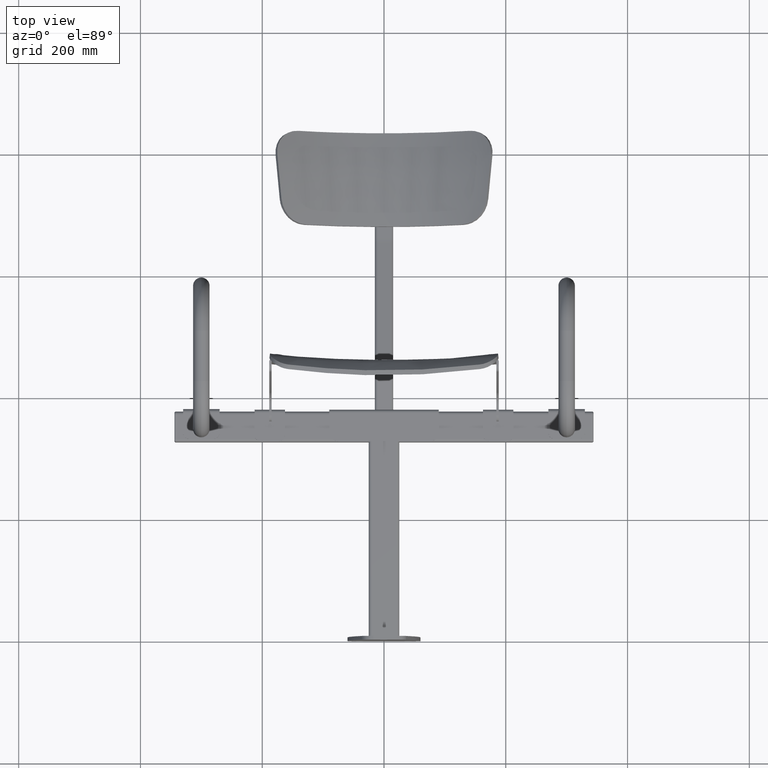
[diagram: clean part render]
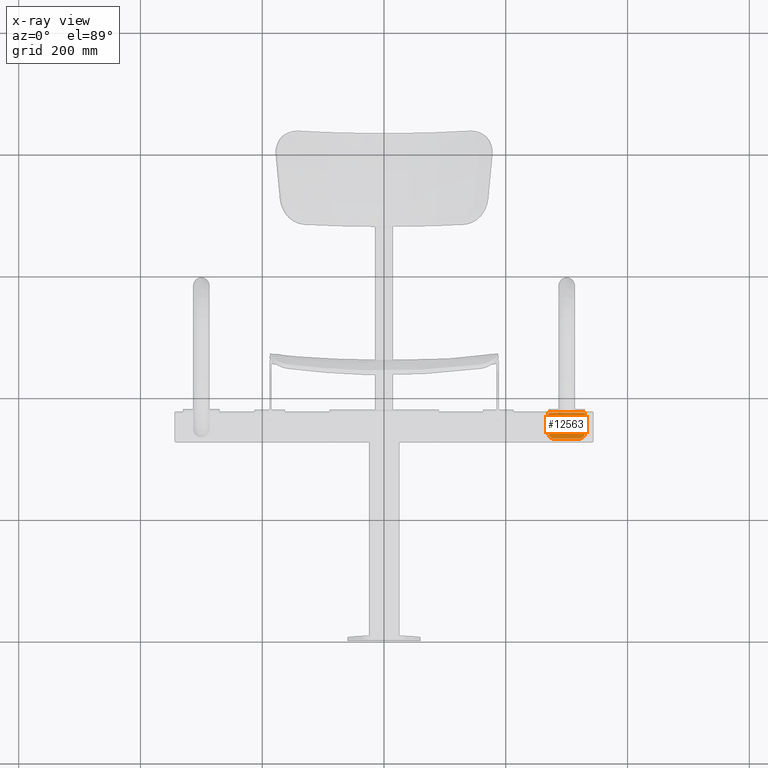
[diagram: x-ray — body ghosted, one internal face saturated and labeled with its STEP entity id]
A machine part, top view, then the same camera in x-ray: the body is ghosted and one INTERNAL B-rep face — a face not visible from any outside direction — is saturated and labeled: STEP entity #12563.
In plain terms, the highlighted planar face has unit normal (0, 0, -1).
Its self-contained STEP definition (entity closure, byte-faithful):
#451 = AXIS2_PLACEMENT_3D ( 'NONE', #4349, #4346, #4353 ) ;
#3743 = EDGE_CURVE ( 'NONE', #5325, #5346, #6522, .T. ) ;
#4122 = LINE ( 'NONE', #5833, #4125 ) ;
#4124 = LINE ( 'NONE', #5837, #4132 ) ;
#4125 = VECTOR ( 'NONE', #5835, 1000.000000000000000 ) ;
#4126 = CIRCLE ( 'NONE', #6946, 5.000000000000000900 ) ;
#4128 = LINE ( 'NONE', #5834, #4130 ) ;
#4130 = VECTOR ( 'NONE', #5828, 1000.000000000000000 ) ;
#4131 = LINE ( 'NONE', #7246, #4134 ) ;
#4132 = VECTOR ( 'NONE', #5842, 1000.000000000000000 ) ;
#4133 = CIRCLE ( 'NONE', #6947, 10.00000000000000200 ) ;
#4134 = VECTOR ( 'NONE', #7247, 1000.000000000000000 ) ;
#4135 = CIRCLE ( 'NONE', #6948, 10.00000000000000200 ) ;
#4346 = DIRECTION ( 'NONE',  ( 0.0000000000000000000, 1.541976423090495400E-016, -1.000000000000000000 ) ) ;
#4349 = CARTESIAN_POINT ( 'NONE',  ( 30.00000000000000000, 0.0000000000000000000, 26.00000000000000000 ) ) ;
#4351 = PLANE ( 'NONE',  #451 ) ;
#4353 = DIRECTION ( 'NONE',  ( 0.0000000000000000000, 1.000000000000000000, 1.541976423090495400E-016 ) ) ;
#4765 = CARTESIAN_POINT ( 'NONE',  ( -19.99999999999999600, -45.00000000000000000, 25.99999999999999300 ) ) ;
#4808 = CARTESIAN_POINT ( 'NONE',  ( 30.00000000000000000, -1.999999999999999100, 26.00000000000000000 ) ) ;
#5299 = VERTEX_POINT ( 'NONE', #15569 ) ;
#5301 = VERTEX_POINT ( 'NONE', #15571 ) ;
#5318 = VERTEX_POINT ( 'NONE', #15588 ) ;
#5325 = VERTEX_POINT ( 'NONE', #15595 ) ;
#5346 = VERTEX_POINT ( 'NONE', #15616 ) ;
#5347 = VERTEX_POINT ( 'NONE', #15617 ) ;
#5828 = DIRECTION ( 'NONE',  ( 0.0000000000000000000, -1.000000000000000000, -1.541976423090495400E-016 ) ) ;
#5833 = CARTESIAN_POINT ( 'NONE',  ( 30.00000000000000000, -45.00000000000000000, 25.99999999999999300 ) ) ;
#5834 = CARTESIAN_POINT ( 'NONE',  ( -30.00000000000000000, 0.0000000000000000000, 26.00000000000000000 ) ) ;
#5835 = DIRECTION ( 'NONE',  ( -1.000000000000000000, -0.0000000000000000000, -0.0000000000000000000 ) ) ;
#5837 = CARTESIAN_POINT ( 'NONE',  ( 30.00000000000000000, -2.000000000000000000, 26.00000000000000000 ) ) ;
#5838 = CARTESIAN_POINT ( 'NONE',  ( 0.0000000000000000000, -29.00000000000002500, 25.99999999999999600 ) ) ;
#5839 = DIRECTION ( 'NONE',  ( 0.0000000000000000000, 1.541976423090495400E-016, -1.000000000000000000 ) ) ;
#5840 = DIRECTION ( 'NONE',  ( 0.0000000000000000000, 1.000000000000000000, 0.0000000000000000000 ) ) ;
#5842 = DIRECTION ( 'NONE',  ( 1.000000000000000000, -0.0000000000000000000, -0.0000000000000000000 ) ) ;
#6243 = EDGE_LOOP ( 'NONE', ( #7506, #7505 ) ) ;
#6522 = CIRCLE ( 'NONE', #14114, 5.000000000000000900 ) ;
#6611 = CARTESIAN_POINT ( 'NONE',  ( 0.0000000000000000000, -29.00000000000002500, 25.99999999999999600 ) ) ;
#6612 = DIRECTION ( 'NONE',  ( 0.0000000000000000000, 1.541976423090495400E-016, -1.000000000000000000 ) ) ;
#6613 = DIRECTION ( 'NONE',  ( 0.0000000000000000000, 1.000000000000000000, 0.0000000000000000000 ) ) ;
#6946 = AXIS2_PLACEMENT_3D ( 'NONE', #5838, #5839, #5840 ) ;
#6947 = AXIS2_PLACEMENT_3D ( 'NONE', #7250, #7251, #7252 ) ;
#6948 = AXIS2_PLACEMENT_3D ( 'NONE', #7255, #7256, #7257 ) ;
#7231 = EDGE_LOOP ( 'NONE', ( #7504, #7503, #7502, #7501, #7500, #7499 ) ) ;
#7246 = CARTESIAN_POINT ( 'NONE',  ( 30.00000000000000000, 0.0000000000000000000, 26.00000000000000000 ) ) ;
#7247 = DIRECTION ( 'NONE',  ( 0.0000000000000000000, -1.000000000000000000, -1.541976423090495400E-016 ) ) ;
#7250 = CARTESIAN_POINT ( 'NONE',  ( 19.99999999999999600, -34.99999999999999300, 25.99999999999999300 ) ) ;
#7251 = DIRECTION ( 'NONE',  ( 0.0000000000000000000, 1.541976423090495400E-016, -1.000000000000000000 ) ) ;
#7252 = DIRECTION ( 'NONE',  ( 0.0000000000000000000, 1.000000000000000000, 0.0000000000000000000 ) ) ;
#7255 = CARTESIAN_POINT ( 'NONE',  ( -19.99999999999999600, -34.99999999999999300, 25.99999999999999300 ) ) ;
#7256 = DIRECTION ( 'NONE',  ( 0.0000000000000000000, 1.541976423090495400E-016, -1.000000000000000000 ) ) ;
#7257 = DIRECTION ( 'NONE',  ( 0.0000000000000000000, 1.000000000000000000, 0.0000000000000000000 ) ) ;
#7499 = ORIENTED_EDGE ( 'NONE', *, *, #7721, .T. ) ;
#7500 = ORIENTED_EDGE ( 'NONE', *, *, #7714, .T. ) ;
#7501 = ORIENTED_EDGE ( 'NONE', *, *, #7720, .T. ) ;
#7502 = ORIENTED_EDGE ( 'NONE', *, *, #7719, .T. ) ;
#7503 = ORIENTED_EDGE ( 'NONE', *, *, #7718, .T. ) ;
#7504 = ORIENTED_EDGE ( 'NONE', *, *, #7717, .F. ) ;
#7505 = ORIENTED_EDGE ( 'NONE', *, *, #3743, .F. ) ;
#7506 = ORIENTED_EDGE ( 'NONE', *, *, #7716, .F. ) ;
#7714 = EDGE_CURVE ( 'NONE', #5318, #13145, #4122, .T. ) ;
#7716 = EDGE_CURVE ( 'NONE', #5346, #5325, #4126, .T. ) ;
#7717 = EDGE_CURVE ( 'NONE', #5299, #5347, #4128, .T. ) ;
#7718 = EDGE_CURVE ( 'NONE', #5299, #13162, #4124, .T. ) ;
#7719 = EDGE_CURVE ( 'NONE', #13162, #5301, #4131, .T. ) ;
#7720 = EDGE_CURVE ( 'NONE', #5301, #5318, #4133, .T. ) ;
#7721 = EDGE_CURVE ( 'NONE', #13145, #5347, #4135, .T. ) ;
#12563 = ADVANCED_FACE ( 'NONE', ( #13294, #13296 ), #4351, .T. ) ;
#13145 = VERTEX_POINT ( 'NONE', #4765 ) ;
#13162 = VERTEX_POINT ( 'NONE', #4808 ) ;
#13294 = FACE_BOUND ( 'NONE', #6243, .T. ) ;
#13296 = FACE_OUTER_BOUND ( 'NONE', #7231, .T. ) ;
#14114 = AXIS2_PLACEMENT_3D ( 'NONE', #6611, #6612, #6613 ) ;
#15569 = CARTESIAN_POINT ( 'NONE',  ( -30.00000000000000000, -1.999999999999999100, 26.00000000000000000 ) ) ;
#15571 = CARTESIAN_POINT ( 'NONE',  ( 30.00000000000000000, -34.99999999999998600, 25.99999999999999300 ) ) ;
#15588 = CARTESIAN_POINT ( 'NONE',  ( 19.99999999999999600, -45.00000000000000000, 25.99999999999999300 ) ) ;
#15595 = CARTESIAN_POINT ( 'NONE',  ( 6.123233995736763300E-016, -34.00000000000002800, 25.99999999999999600 ) ) ;
#15616 = CARTESIAN_POINT ( 'NONE',  ( 0.0000000000000000000, -24.00000000000002500, 25.99999999999999600 ) ) ;
#15617 = CARTESIAN_POINT ( 'NONE',  ( -30.00000000000000000, -34.99999999999998600, 25.99999999999999300 ) ) ;